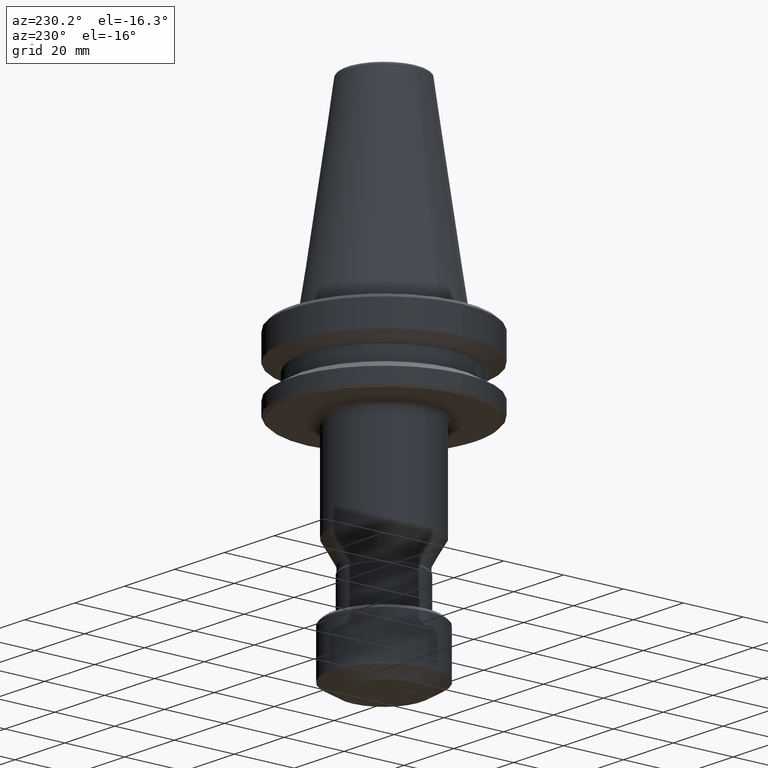
[diagram: clean part render]
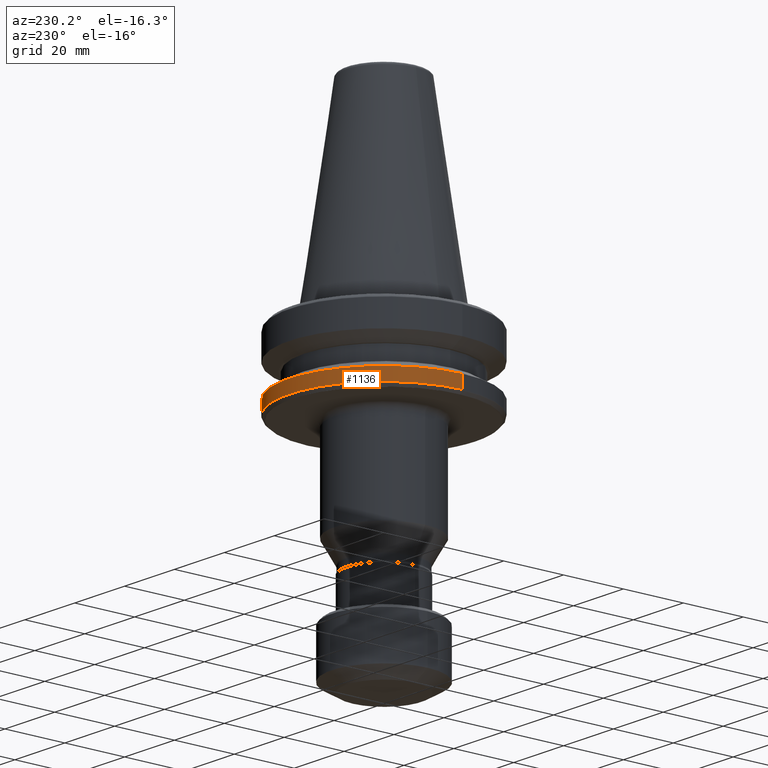
[diagram: same view with one face highlighted and labeled with its STEP entity id]
A machine part, auxiliary view. The second image highlights one B-rep face of the part: STEP entity #1136.
In plain terms, the highlighted cylindrical surface (partial cylindrical patch) has radius 31.5 mm, axis along (-0, -0, 1).
Its self-contained STEP definition (entity closure, byte-faithful):
#19 = ORIENTED_EDGE ( 'NONE', *, *, #718, .F. ) ;
#68 = AXIS2_PLACEMENT_3D ( 'NONE', #350, #1069, #807 ) ;
#73 = VERTEX_POINT ( 'NONE', #1213 ) ;
#133 = CYLINDRICAL_SURFACE ( 'NONE', #68, 31.50000000000000000 ) ;
#147 = FACE_OUTER_BOUND ( 'NONE', #774, .T. ) ;
#161 = EDGE_CURVE ( 'NONE', #73, #713, #499, .T. ) ;
#167 = CARTESIAN_POINT ( 'NONE',  ( 31.50000000000000000, 0.0000000000000000000, -21.60014200631675500 ) ) ;
#171 = ORIENTED_EDGE ( 'NONE', *, *, #246, .F. ) ;
#246 = EDGE_CURVE ( 'NONE', #73, #410, #453, .T. ) ;
#314 = VECTOR ( 'NONE', #569, 1000.000000000000000 ) ;
#316 = LINE ( 'NONE', #415, #314 ) ;
#331 = CIRCLE ( 'NONE', #1534, 31.50000000000000000 ) ;
#350 = CARTESIAN_POINT ( 'NONE',  ( 0.0000000000000000000, 0.0000000000000000000, 69.75694866325665100 ) ) ;
#393 = ORIENTED_EDGE ( 'NONE', *, *, #161, .T. ) ;
#410 = VERTEX_POINT ( 'NONE', #167 ) ;
#415 = CARTESIAN_POINT ( 'NONE',  ( -31.50000000000000000, 3.857637417314162700E-015, 69.75694866325665100 ) ) ;
#436 = DIRECTION ( 'NONE',  ( -0.0000000000000000000, -0.0000000000000000000, 1.000000000000000000 ) ) ;
#448 = VECTOR ( 'NONE', #1358, 1000.000000000000000 ) ;
#453 = LINE ( 'NONE', #919, #448 ) ;
#499 = CIRCLE ( 'NONE', #1017, 31.50000000000000000 ) ;
#569 = DIRECTION ( 'NONE',  ( -0.0000000000000000000, -0.0000000000000000000, 1.000000000000000000 ) ) ;
#588 = DIRECTION ( 'NONE',  ( 1.000000000000000000, 0.0000000000000000000, 0.0000000000000000000 ) ) ;
#615 = VERTEX_POINT ( 'NONE', #993 ) ;
#663 = EDGE_CURVE ( 'NONE', #713, #615, #316, .T. ) ;
#713 = VERTEX_POINT ( 'NONE', #1635 ) ;
#718 = EDGE_CURVE ( 'NONE', #410, #615, #331, .T. ) ;
#774 = EDGE_LOOP ( 'NONE', ( #393, #809, #19, #171 ) ) ;
#807 = DIRECTION ( 'NONE',  ( 1.000000000000000000, 0.0000000000000000000, 0.0000000000000000000 ) ) ;
#809 = ORIENTED_EDGE ( 'NONE', *, *, #663, .T. ) ;
#919 = CARTESIAN_POINT ( 'NONE',  ( 31.50000000000000000, 0.0000000000000000000, 69.75694866325665100 ) ) ;
#993 = CARTESIAN_POINT ( 'NONE',  ( -31.50000000000000000, 3.857637417314162700E-015, -21.60014200631675500 ) ) ;
#1017 = AXIS2_PLACEMENT_3D ( 'NONE', #1230, #1319, #588 ) ;
#1069 = DIRECTION ( 'NONE',  ( -0.0000000000000000000, -0.0000000000000000000, 1.000000000000000000 ) ) ;
#1136 = ADVANCED_FACE ( 'NONE', ( #147 ), #133, .T. ) ;
#1213 = CARTESIAN_POINT ( 'NONE',  ( 31.50000000000000000, 0.0000000000000000000, -25.83431457505076900 ) ) ;
#1230 = CARTESIAN_POINT ( 'NONE',  ( 0.0000000000000000000, 0.0000000000000000000, -25.83431457505076900 ) ) ;
#1245 = CARTESIAN_POINT ( 'NONE',  ( 0.0000000000000000000, 0.0000000000000000000, -21.60014200631675500 ) ) ;
#1319 = DIRECTION ( 'NONE',  ( -0.0000000000000000000, -0.0000000000000000000, 1.000000000000000000 ) ) ;
#1350 = DIRECTION ( 'NONE',  ( 1.000000000000000000, 0.0000000000000000000, 0.0000000000000000000 ) ) ;
#1358 = DIRECTION ( 'NONE',  ( -0.0000000000000000000, -0.0000000000000000000, 1.000000000000000000 ) ) ;
#1534 = AXIS2_PLACEMENT_3D ( 'NONE', #1245, #436, #1350 ) ;
#1635 = CARTESIAN_POINT ( 'NONE',  ( -31.50000000000000000, 3.857637417314162700E-015, -25.83431457505076900 ) ) ;